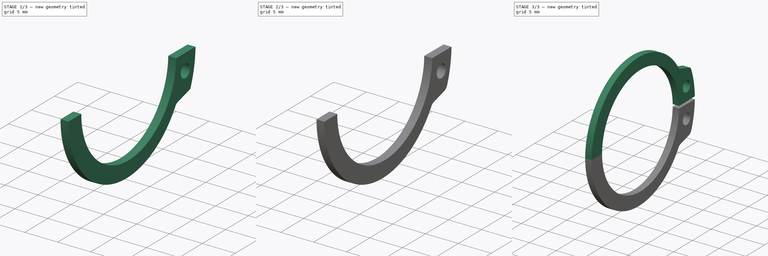
[diagram: build sequence overview — one tinted view per stage of 3, left to right]
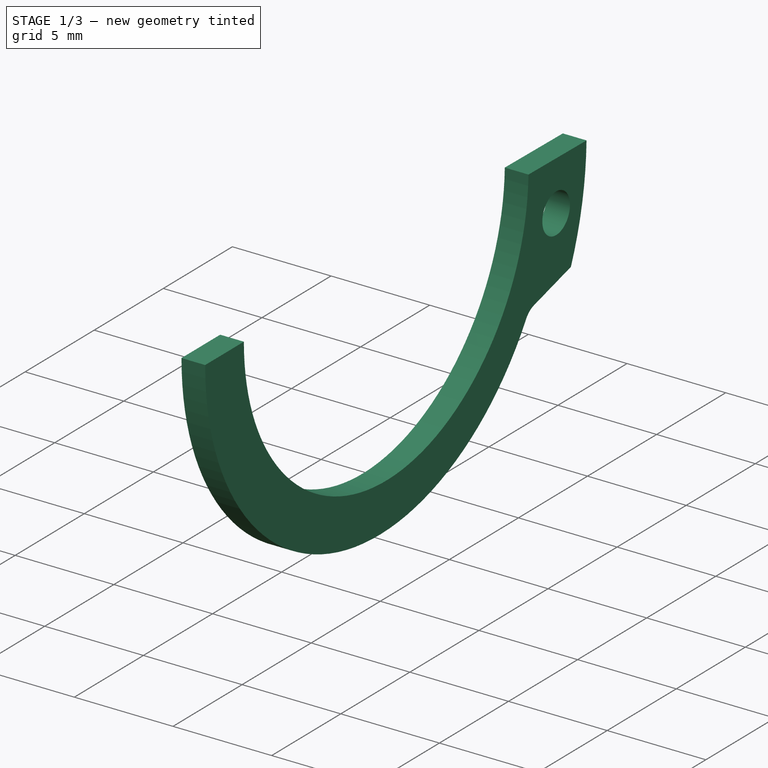
[diagram: stage 1 of 3 — iso view after this stage's code; geometry added in this stage tinted green]
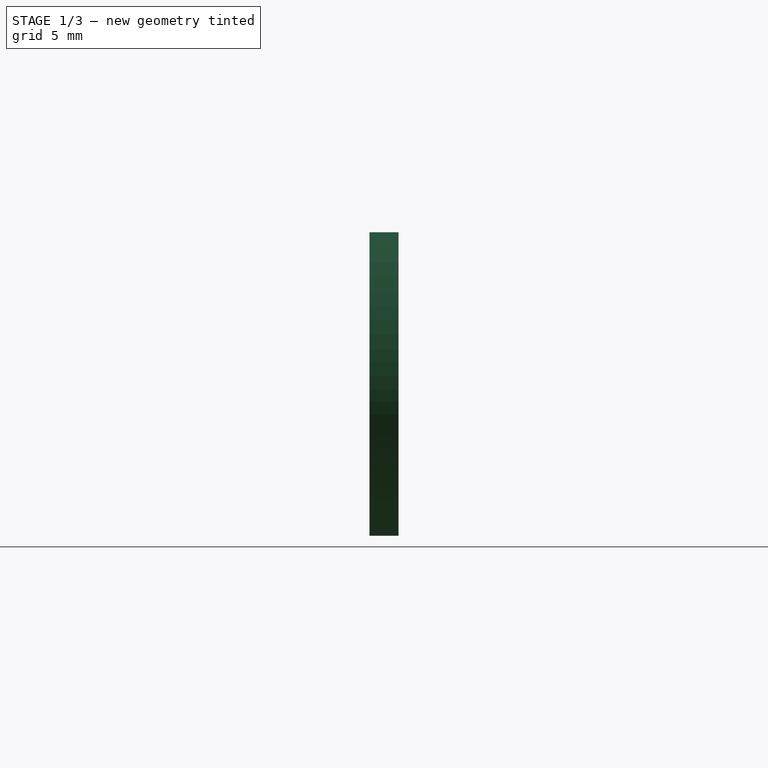
[diagram: stage 1 of 3 — front view after this stage's code; geometry added in this stage tinted green]
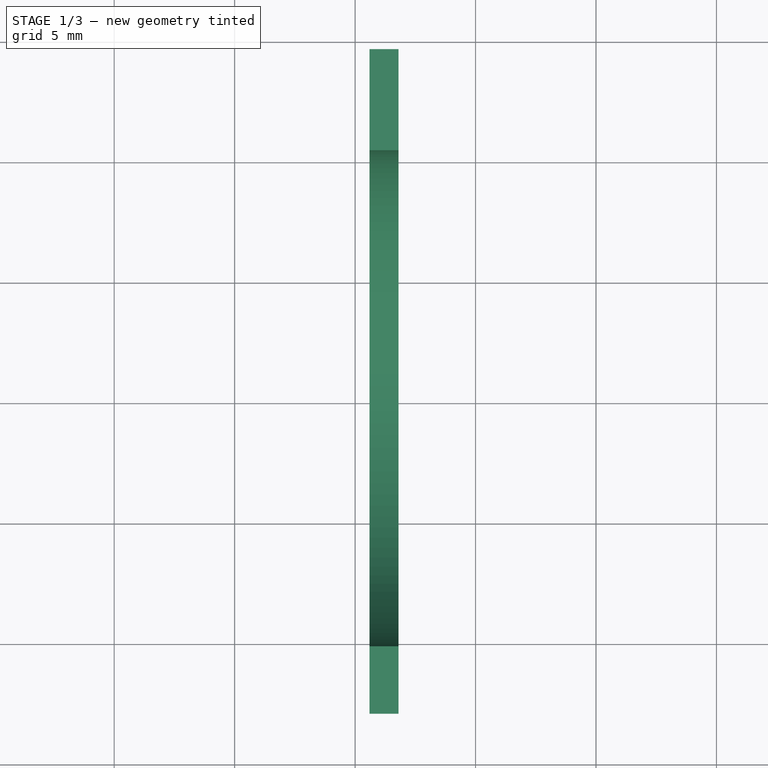
[diagram: stage 1 of 3 — top view after this stage's code; geometry added in this stage tinted green]
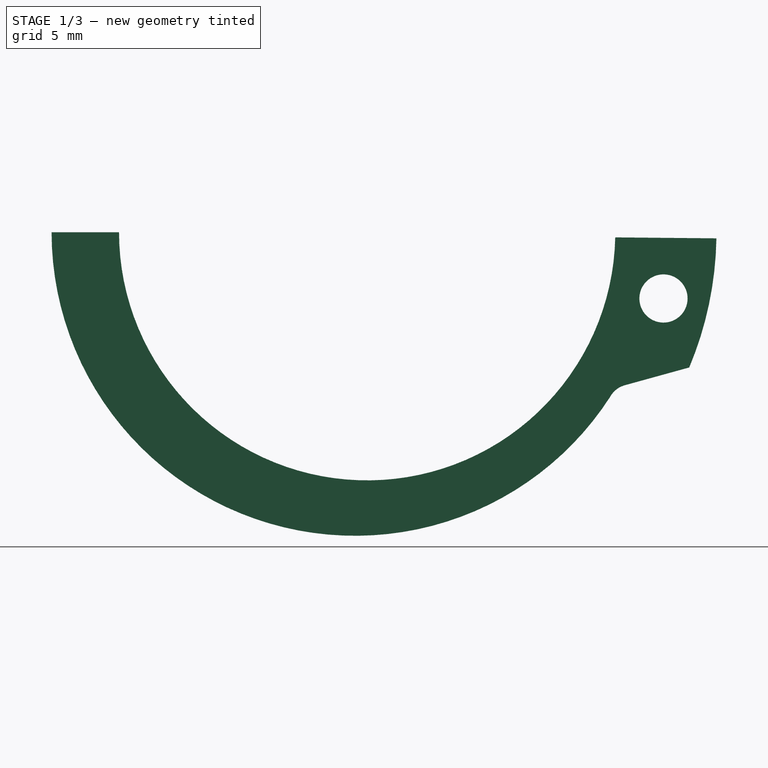
[diagram: stage 1 of 3 — right view after this stage's code; geometry added in this stage tinted green]
FCSTD DOCUMENT  (FreeCAD 0.15R4671 (Git))
Label: DIN471_CLASS_A_M22RetainingRings
License: CreativeCommons Attribution-ShareAlike
LicenseURL: http://creativecommons.org/licenses/by-sa/4.0/
objects: PartDesign::Fillet×2, Sketcher::SketchObject×1, PartDesign::Pad×1, Part::Mirroring×1, Part::MultiFuse×1
note: 7 computed .brp shape members not serialized (recipe doc carries the construction recipe); baked Part::Feature solids carry a one-line shape summary decoded from their .brp

FEATURE [Sketcher::SketchObject] Sketch
  Placement = pos=(0.6,0,0) rot=(0.57735,0.57735,0.57735;2.0944rad)
  sketch-geometry (8):
    g0: Circle CenterX=12.3 CenterY=2.75 CenterZ=0 NormalX=0 NormalY=0 NormalZ=1 Radius=1
    g1: ArcOfCircle CenterX=0 CenterY=0 CenterZ=0 NormalX=0 NormalY=0 NormalZ=1 Radius=10.3 StartAngle=0.0207308 EndAngle=3.14159
    g2: ArcOfCircle CenterX=0 CenterY=0 CenterZ=0 NormalX=0 NormalY=0 NormalZ=1 Radius=14.5 StartAngle=0.0174741 EndAngle=0.397528
    g3: LineSegment StartX=10.2978 StartY=0.213512 StartZ=0 EndX=14.4978 EndY=0.253362 EndZ=0
    g4: LineSegment StartX=13.3693 StartY=5.61354 StartZ=0 EndX=10.6855 EndY=6.35381 EndZ=0
    g5: ArcOfCircle CenterX=-0.5 CenterY=0 CenterZ=0 NormalX=0 NormalY=0 NormalZ=1 Radius=12.6 StartAngle=0.573709 EndAngle=3.14159
    g6: LineSegment StartX=-13.1 StartY=0 StartZ=0 EndX=-10.3 EndY=0 EndZ=0
    g7: ArcOfCircle CenterX=10.962 CenterY=7.31482 CenterZ=0 NormalX=0 NormalY=0 NormalZ=1 Radius=1 StartAngle=3.63788 EndAngle=4.43224
  constraints (26):
    c: Radius(g0) = 1
    c: DistanceY(g-1,g0) = 2.75
    c: DistanceX(g-1,g0) = 12.3
    c: PointOnObject(g1,g-1)
    c: Coincident(g1,g-1)
    c: Radius(g1) = 10.3
    c: Coincident(g2,g-1)
    c: Coincident(g3,g1)
    c: Coincident(g3,g2)
    c: DistanceX(g3) = 4.2
    c: Coincident(g4,g2)
    c: PointOnObject(g5,g-1)
    c: PointOnObject(g5,g-1)
    c: Coincident(g6,g5)
    c: Coincident(g6,g1)
    c: DistanceX(g6) = 2.8
    c: Radius(g5) = 12.6
    c: Coincident(g7,g5)
    c: Coincident(g7,g4)
    c: Radius(g7) = 1
    c: DistanceY(g-1,g5) = 6.83866
    c: DistanceY(g-1,g4) = 6.35381
    c: DistanceY(g-1,g2) = 5.61354
    c: DistanceY(g-1,g2) = 0.253362
    c: DistanceX(g-1,g2) = 13.3693
    c: DistanceX(g4) = -2.68378
FEATURE [PartDesign::Pad] Pad
  Length = 1.2
  Length2 = 100
  Placement = pos=(0.6,0,0) rot=(0.57735,0.57735,0.57735;2.0944rad)
  Sketch = -> Sketch
  Type = 0
FEATURE [Part::Mirroring] Part__Mirroring  label="Pad (Mirror #1)"
  Base = (0,0,0)
  Normal = (0,0,1)
  Source = -> Pad
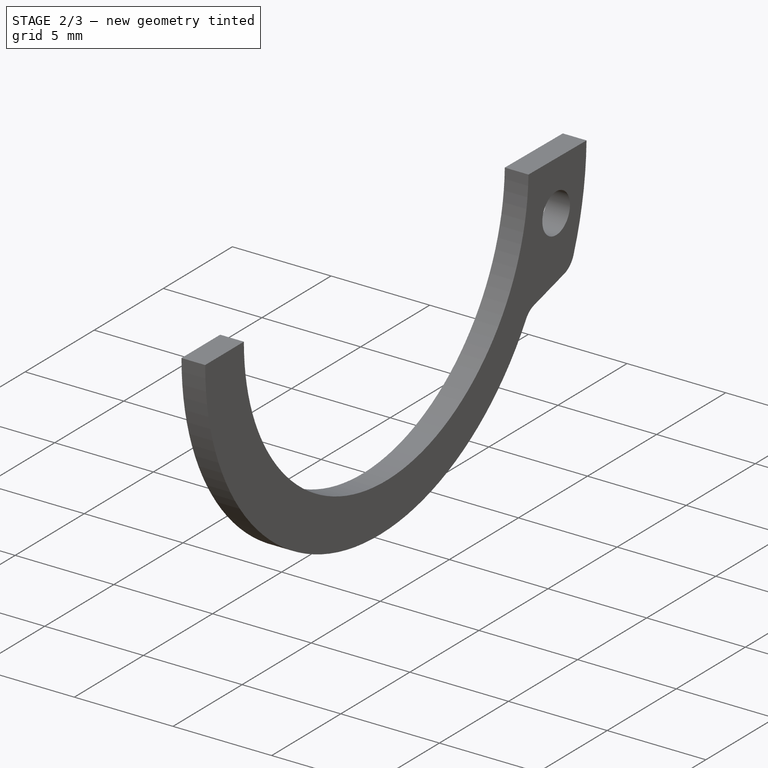
[diagram: stage 2 of 3 — iso view after this stage's code; geometry added in this stage tinted green]
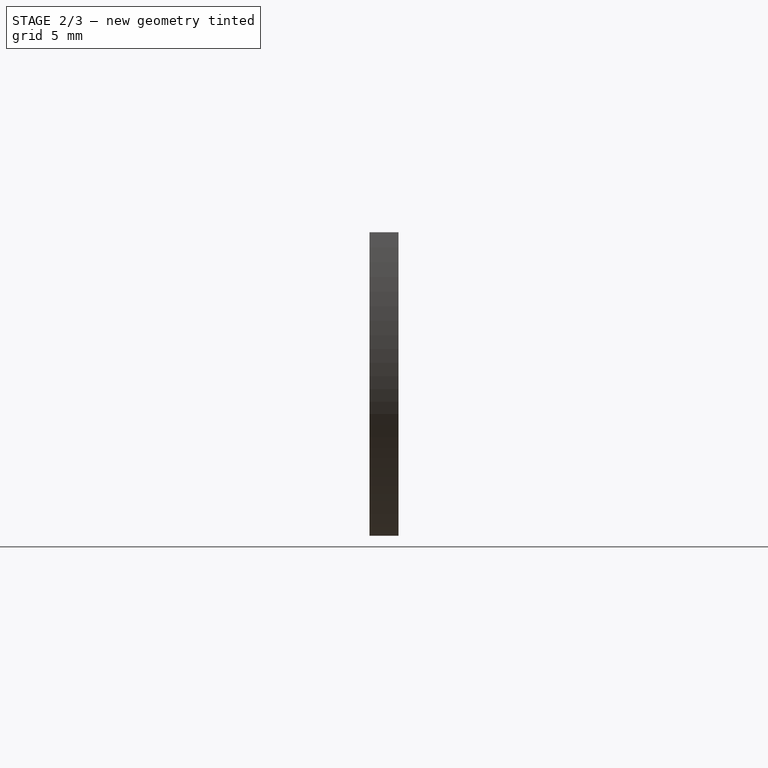
[diagram: stage 2 of 3 — front view after this stage's code; geometry added in this stage tinted green]
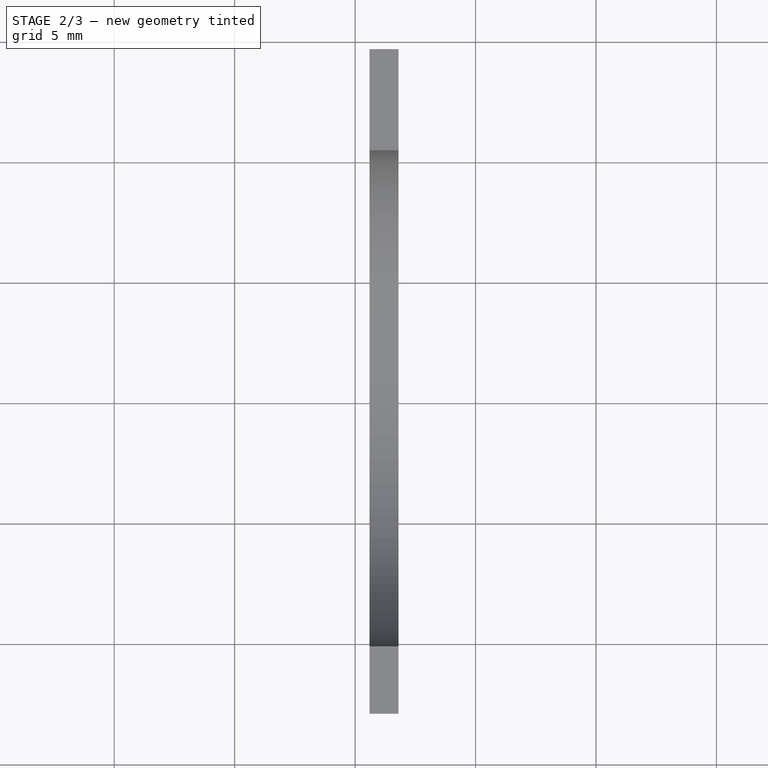
[diagram: stage 2 of 3 — top view after this stage's code; geometry added in this stage tinted green]
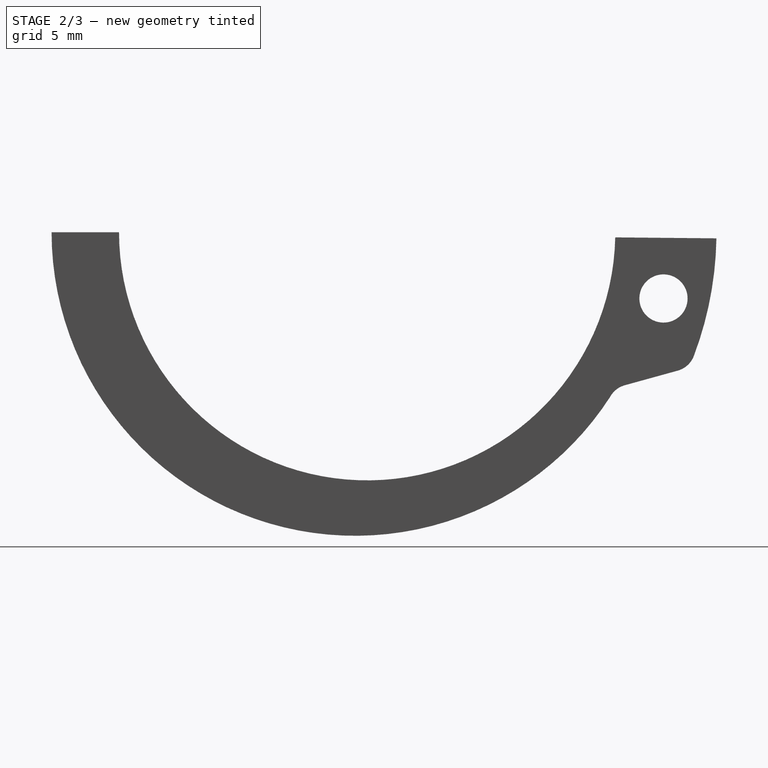
[diagram: stage 2 of 3 — right view after this stage's code; geometry added in this stage tinted green]
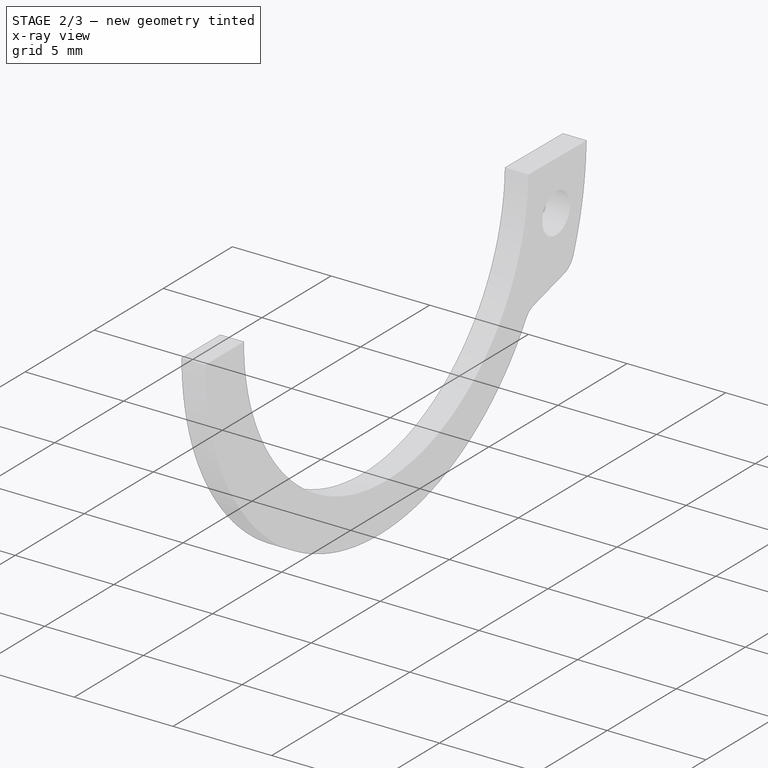
[diagram: stage 2 of 3 — x-ray composite at the iso view; earlier geometry ghosted, this stage's added geometry solid]
FEATURE [PartDesign::Fillet] Fillet001
  Base = -> Part__Mirroring [Edge17]
  Radius = 1
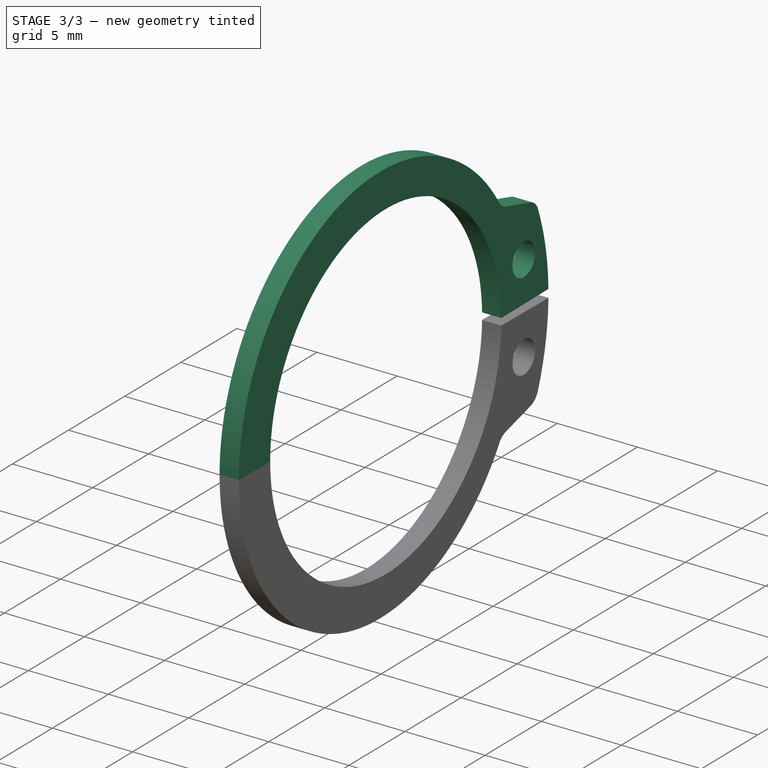
[diagram: stage 3 of 3 — iso view after this stage's code; geometry added in this stage tinted green]
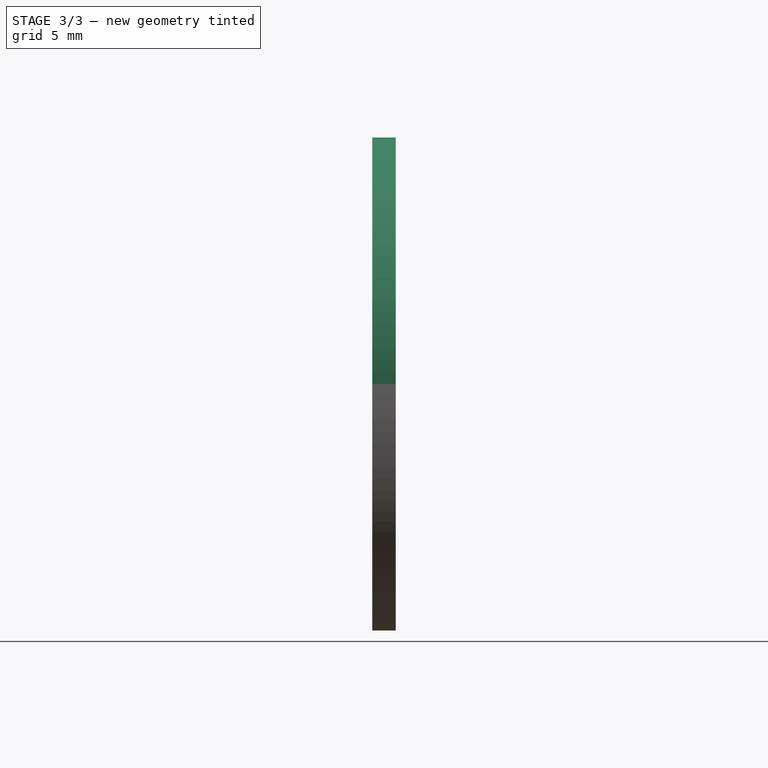
[diagram: stage 3 of 3 — front view after this stage's code; geometry added in this stage tinted green]
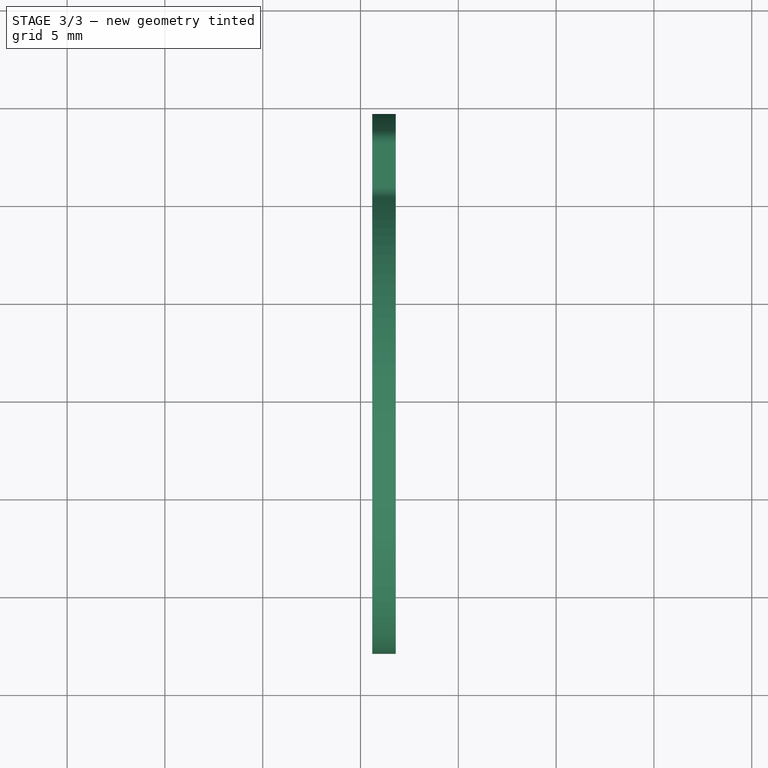
[diagram: stage 3 of 3 — top view after this stage's code; geometry added in this stage tinted green]
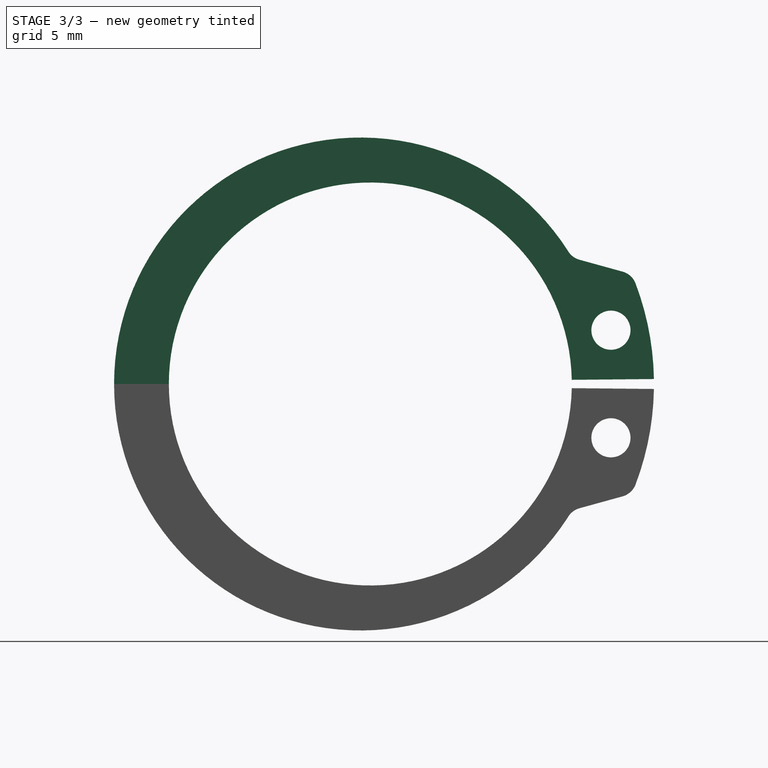
[diagram: stage 3 of 3 — right view after this stage's code; geometry added in this stage tinted green]
FEATURE [PartDesign::Fillet] Fillet
  Base = -> Pad [Edge17]
  Placement = pos=(0.6,0,0) rot=(0.57735,0.57735,0.57735;2.0944rad)
  Radius = 1
FEATURE [Part::MultiFuse] Fusion
  Shapes = -> [Fillet,Fillet001]
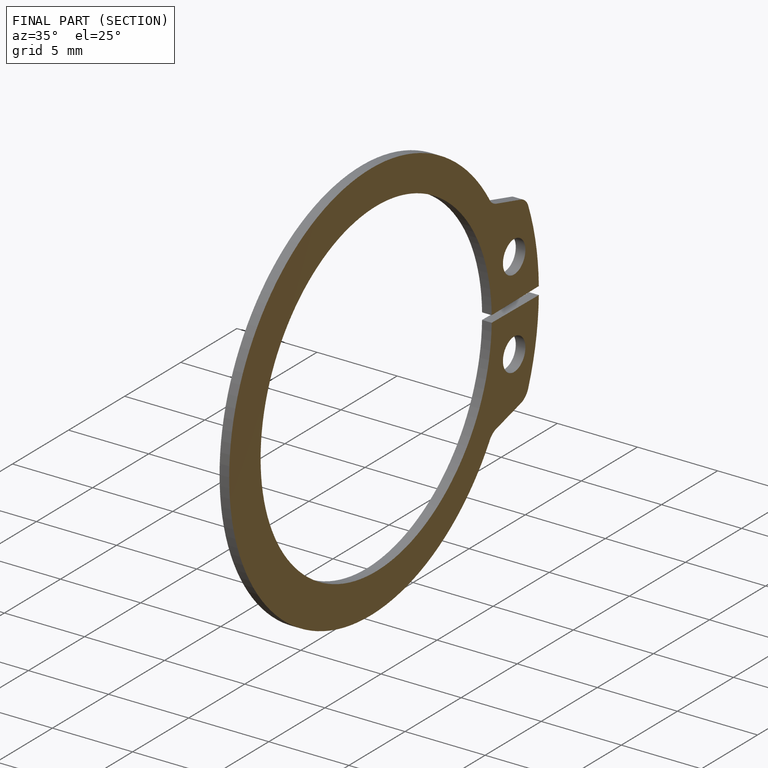
[diagram: finished part — half-section view (interior)]
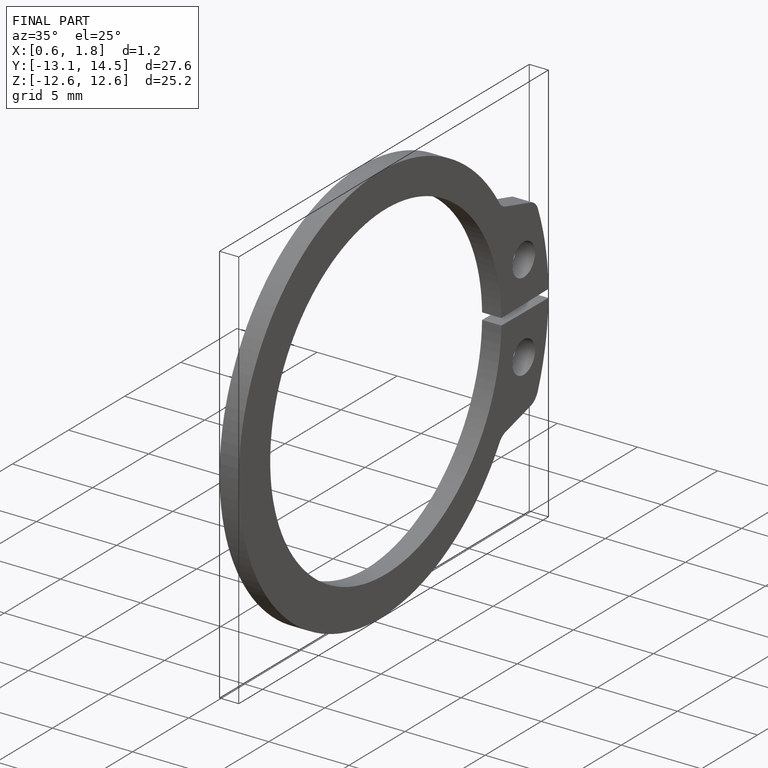
[diagram: finished part — iso view with bounding-box wireframe]
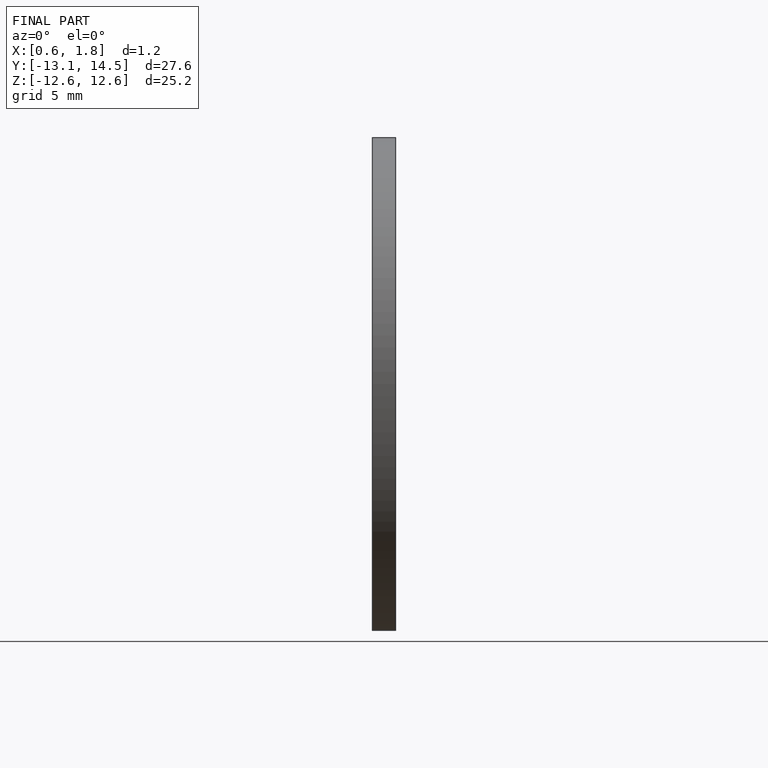
[diagram: finished part — front view with bounding-box wireframe]
